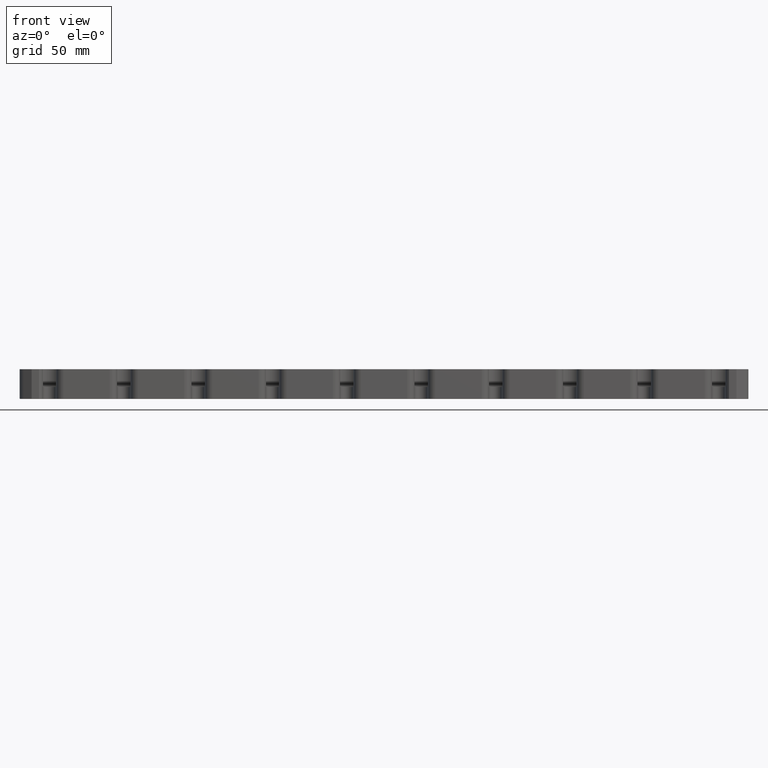
[diagram: clean part render]
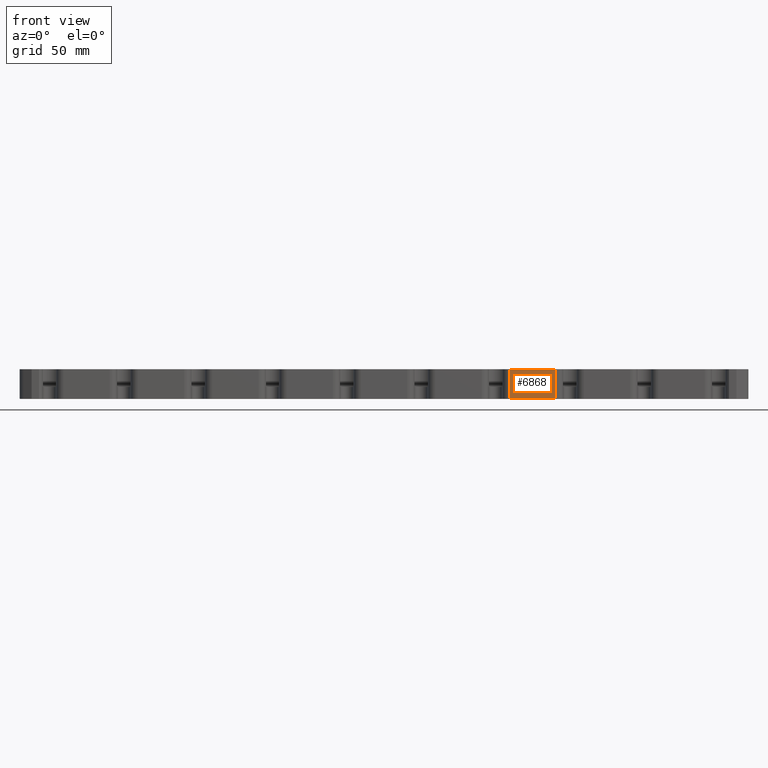
[diagram: same view with one face highlighted and labeled with its STEP entity id]
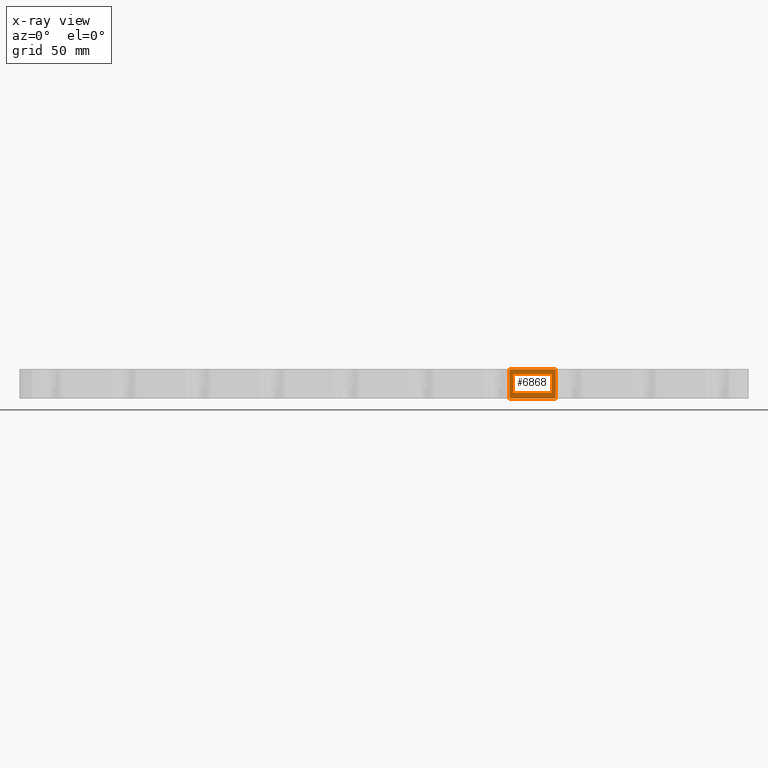
[diagram: x-ray of the same camera — body ghosted, the highlighted face saturated]
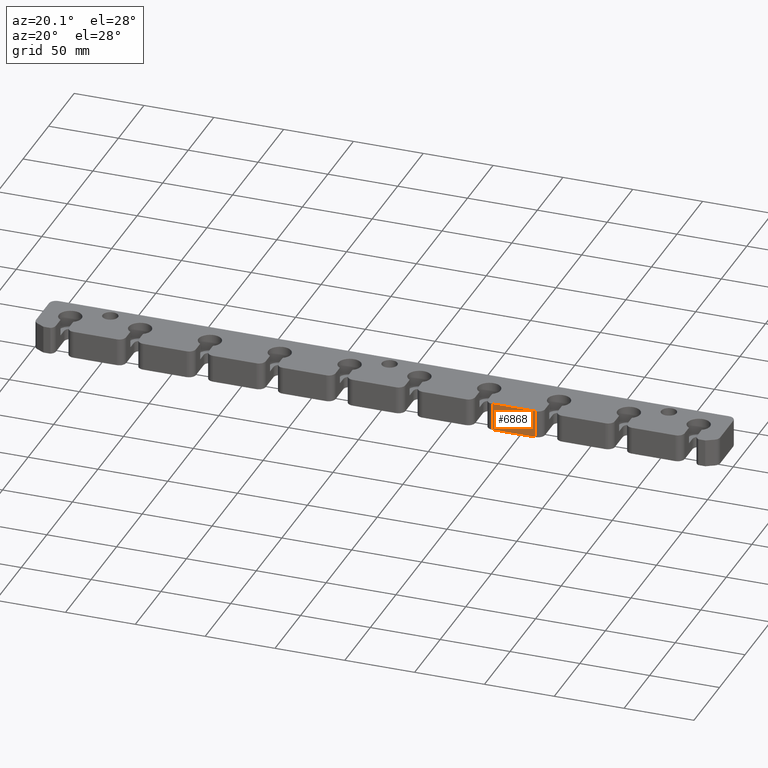
[diagram: same view with one face highlighted and labeled with its STEP entity id]
A machine part, front view. The second image highlights one B-rep face of the part: STEP entity #6868.
The next image is the same camera in x-ray: the body ghosted, the highlighted face saturated — about 0% of this face is hidden behind the body in this view.
A second angle (auxiliary view) of the same face is appended — the face is thin or edge-on in the first view.
In plain terms, the highlighted planar face has unit normal (0, 1, 0).
Its self-contained STEP definition (entity closure, byte-faithful):
#68 = CARTESIAN_POINT ( 'NONE',  ( 79.50000000000000000, -19.00000000000000000, 19.82679491924317361 ) ) ;
#142 = DIRECTION ( 'NONE',  ( -1.000000000000000000, 0.000000000000000000, 0.000000000000000000 ) ) ;
#147 = CARTESIAN_POINT ( 'NONE',  ( 79.50000000000000000, -19.00000000000000000, 20.00000000000000000 ) ) ;
#1138 = LINE ( 'NONE', #4713, #6259 ) ;
#1275 = LINE ( 'NONE', #68, #1613 ) ;
#1381 = EDGE_CURVE ( 'NONE', #2632, #3211, #1138, .T. ) ;
#1384 = ORIENTED_EDGE ( 'NONE', *, *, #1381, .T. ) ;
#1613 = VECTOR ( 'NONE', #142, 1000.000000000000000 ) ;
#1757 = CARTESIAN_POINT ( 'NONE',  ( 115.5000000000000000, -19.00000000000000000, 0.1732050807568760731 ) ) ;
#1815 = PLANE ( 'NONE',  #2749 ) ;
#1823 = DIRECTION ( 'NONE',  ( -0.000000000000000000, -0.000000000000000000, 1.000000000000000000 ) ) ;
#1845 = VERTEX_POINT ( 'NONE', #3730 ) ;
#1941 = DIRECTION ( 'NONE',  ( 0.000000000000000000, 0.000000000000000000, -1.000000000000000000 ) ) ;
#2052 = CARTESIAN_POINT ( 'NONE',  ( 84.49999999999998579, -19.00000000000000000, 19.82679491924317361 ) ) ;
#2201 = VECTOR ( 'NONE', #1823, 1000.000000000000000 ) ;
#2289 = CARTESIAN_POINT ( 'NONE',  ( 84.49999999999998579, -19.00000000000000000, 0.1732050807568760731 ) ) ;
#2293 = EDGE_CURVE ( 'NONE', #3211, #5419, #5992, .T. ) ;
#2632 = VERTEX_POINT ( 'NONE', #2052 ) ;
#2749 = AXIS2_PLACEMENT_3D ( 'NONE', #147, #3963, #6620 ) ;
#2776 = ORIENTED_EDGE ( 'NONE', *, *, #3165, .T. ) ;
#3165 = EDGE_CURVE ( 'NONE', #1845, #2632, #1275, .T. ) ;
#3211 = VERTEX_POINT ( 'NONE', #2289 ) ;
#3482 = ORIENTED_EDGE ( 'NONE', *, *, #4243, .T. ) ;
#3599 = CARTESIAN_POINT ( 'NONE',  ( 115.5000000000000000, -19.00000000000000000, 0.1732050807568760731 ) ) ;
#3730 = CARTESIAN_POINT ( 'NONE',  ( 115.5000000000000000, -19.00000000000000000, 19.82679491924317361 ) ) ;
#3913 = FACE_OUTER_BOUND ( 'NONE', #6238, .T. ) ;
#3963 = DIRECTION ( 'NONE',  ( 0.000000000000000000, 1.000000000000000000, 0.000000000000000000 ) ) ;
#4243 = EDGE_CURVE ( 'NONE', #5419, #1845, #4392, .T. ) ;
#4392 = LINE ( 'NONE', #5029, #2201 ) ;
#4603 = VECTOR ( 'NONE', #6569, 1000.000000000000000 ) ;
#4713 = CARTESIAN_POINT ( 'NONE',  ( 84.49999999999998579, -19.00000000000000000, 0.000000000000000000 ) ) ;
#5029 = CARTESIAN_POINT ( 'NONE',  ( 115.5000000000000000, -19.00000000000000000, 20.00000000000000000 ) ) ;
#5419 = VERTEX_POINT ( 'NONE', #3599 ) ;
#5992 = LINE ( 'NONE', #1757, #4603 ) ;
#6238 = EDGE_LOOP ( 'NONE', ( #1384, #6552, #3482, #2776 ) ) ;
#6259 = VECTOR ( 'NONE', #1941, 1000.000000000000000 ) ;
#6552 = ORIENTED_EDGE ( 'NONE', *, *, #2293, .T. ) ;
#6569 = DIRECTION ( 'NONE',  ( 1.000000000000000000, 0.000000000000000000, 0.000000000000000000 ) ) ;
#6620 = DIRECTION ( 'NONE',  ( 0.000000000000000000, -0.000000000000000000, 1.000000000000000000 ) ) ;
#6868 = ADVANCED_FACE ( 'NONE', ( #3913 ), #1815, .F. ) ;